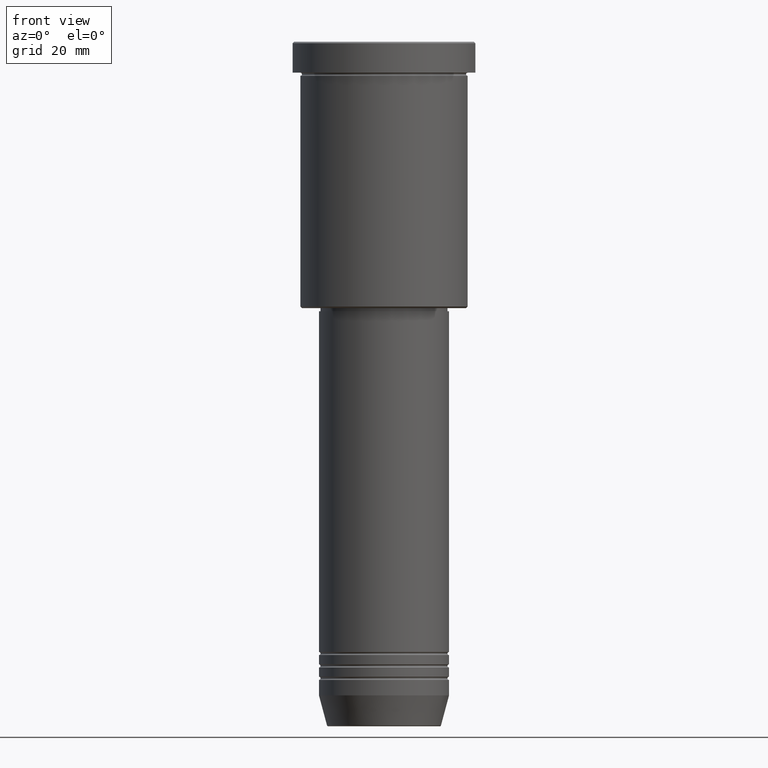
[diagram: clean part render]
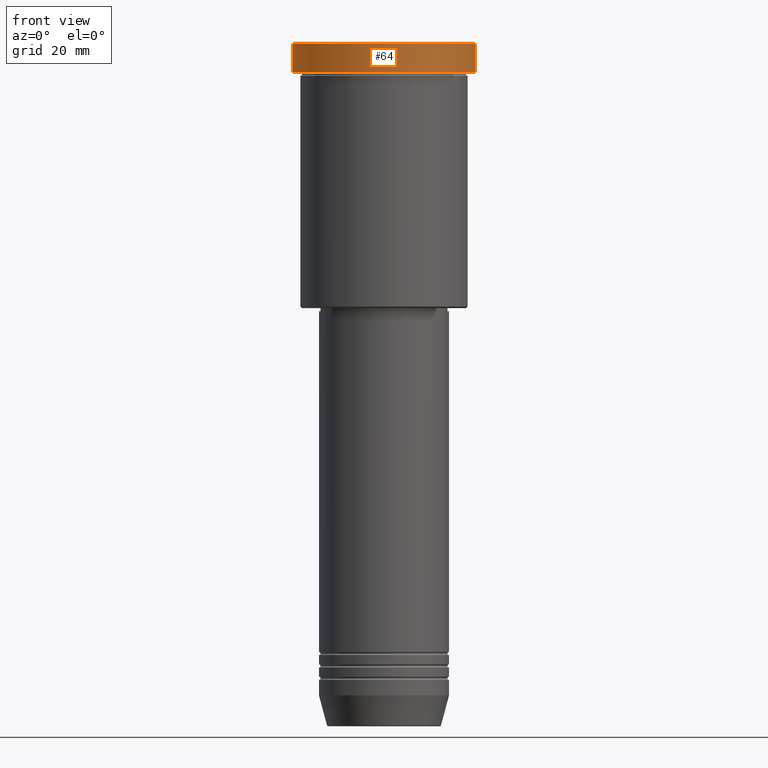
[diagram: same view with one face highlighted and labeled with its STEP entity id]
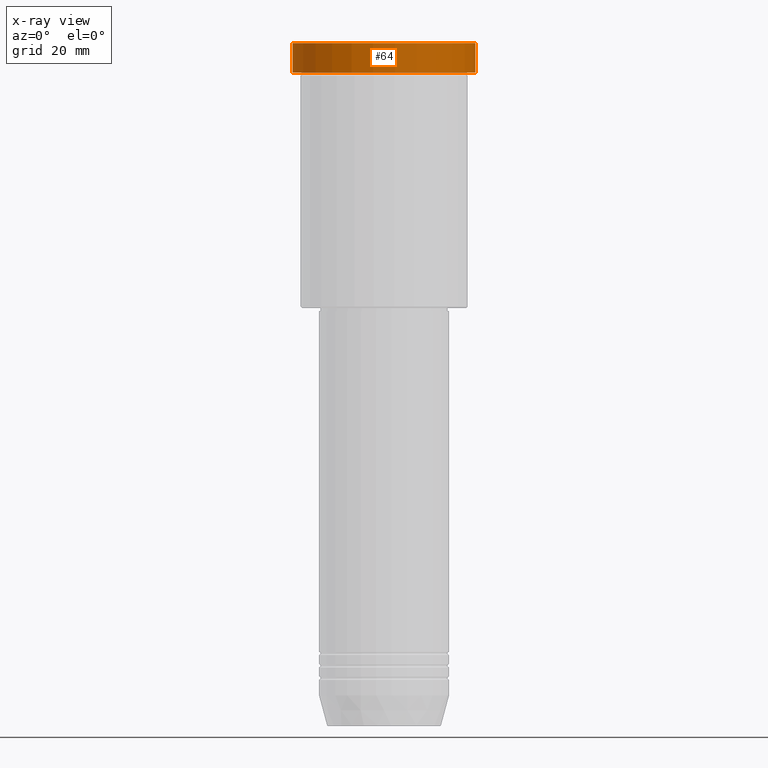
[diagram: x-ray of the same camera — body ghosted, the highlighted face saturated]
A machine part, front view. The second image highlights one B-rep face of the part: STEP entity #64.
The next image is the same camera in x-ray: the body ghosted, the highlighted face saturated — about 0% of this face is hidden behind the body in this view.
In plain terms, the highlighted cylindrical surface (partial cylindrical patch) has radius 29.5 mm, axis along (-0, -0, 1).
Its self-contained STEP definition (entity closure, byte-faithful):
#6 = AXIS2_PLACEMENT_3D ( 'NONE', #773, #687, #598 ) ;
#18 = CARTESIAN_POINT ( 'NONE',  ( -29.50000000000000000, 3.612708057484691604E-15, -9.999999999999992895 ) ) ;
#45 = VERTEX_POINT ( 'NONE', #18 ) ;
#54 = CARTESIAN_POINT ( 'NONE',  ( -29.50000000000000000, 3.612708057484691604E-15, -0.5000000000000559552 ) ) ;
#64 = ADVANCED_FACE ( 'NONE', ( #747 ), #1021, .T. ) ;
#131 = DIRECTION ( 'NONE',  ( -0.000000000000000000, -0.000000000000000000, 1.000000000000000000 ) ) ;
#139 = ORIENTED_EDGE ( 'NONE', *, *, #285, .T. ) ;
#189 = CARTESIAN_POINT ( 'NONE',  ( 29.50000000000000000, 0.000000000000000000, 0.000000000000000000 ) ) ;
#196 = EDGE_CURVE ( 'NONE', #420, #1084, #926, .T. ) ;
#267 = LINE ( 'NONE', #189, #986 ) ;
#275 = ORIENTED_EDGE ( 'NONE', *, *, #955, .T. ) ;
#285 = EDGE_CURVE ( 'NONE', #296, #420, #267, .T. ) ;
#296 = VERTEX_POINT ( 'NONE', #639 ) ;
#383 = DIRECTION ( 'NONE',  ( -0.000000000000000000, -0.000000000000000000, 1.000000000000000000 ) ) ;
#420 = VERTEX_POINT ( 'NONE', #596 ) ;
#432 = EDGE_LOOP ( 'NONE', ( #868, #275, #139, #1012 ) ) ;
#495 = DIRECTION ( 'NONE',  ( 1.000000000000000000, 0.000000000000000000, 0.000000000000000000 ) ) ;
#596 = CARTESIAN_POINT ( 'NONE',  ( 29.50000000000000000, 0.000000000000000000, -0.5000000000000559552 ) ) ;
#598 = DIRECTION ( 'NONE',  ( 1.000000000000000000, 0.000000000000000000, 0.000000000000000000 ) ) ;
#616 = DIRECTION ( 'NONE',  ( -0.000000000000000000, -0.000000000000000000, 1.000000000000000000 ) ) ;
#639 = CARTESIAN_POINT ( 'NONE',  ( 29.50000000000000000, 0.000000000000000000, -9.999999999999992895 ) ) ;
#687 = DIRECTION ( 'NONE',  ( 0.000000000000000000, 0.000000000000000000, -1.000000000000000000 ) ) ;
#690 = CARTESIAN_POINT ( 'NONE',  ( 0.000000000000000000, 0.000000000000000000, -9.999999999999992895 ) ) ;
#695 = LINE ( 'NONE', #890, #780 ) ;
#747 = FACE_OUTER_BOUND ( 'NONE', #432, .T. ) ;
#768 = DIRECTION ( 'NONE',  ( 1.000000000000000000, 0.000000000000000000, 0.000000000000000000 ) ) ;
#773 = CARTESIAN_POINT ( 'NONE',  ( 0.000000000000000000, 0.000000000000000000, -0.5000000000000559552 ) ) ;
#780 = VECTOR ( 'NONE', #616, 1000.000000000000000 ) ;
#815 = AXIS2_PLACEMENT_3D ( 'NONE', #690, #131, #495 ) ;
#836 = DIRECTION ( 'NONE',  ( -0.000000000000000000, -0.000000000000000000, 1.000000000000000000 ) ) ;
#868 = ORIENTED_EDGE ( 'NONE', *, *, #1039, .F. ) ;
#890 = CARTESIAN_POINT ( 'NONE',  ( -29.50000000000000000, 3.612708057484691604E-15, 0.000000000000000000 ) ) ;
#926 = CIRCLE ( 'NONE', #6, 29.50000000000000000 ) ;
#955 = EDGE_CURVE ( 'NONE', #45, #296, #989, .T. ) ;
#986 = VECTOR ( 'NONE', #836, 1000.000000000000000 ) ;
#989 = CIRCLE ( 'NONE', #815, 29.50000000000000000 ) ;
#1012 = ORIENTED_EDGE ( 'NONE', *, *, #196, .T. ) ;
#1021 = CYLINDRICAL_SURFACE ( 'NONE', #1098, 29.50000000000000000 ) ;
#1028 = CARTESIAN_POINT ( 'NONE',  ( 0.000000000000000000, 0.000000000000000000, 0.000000000000000000 ) ) ;
#1039 = EDGE_CURVE ( 'NONE', #45, #1084, #695, .T. ) ;
#1084 = VERTEX_POINT ( 'NONE', #54 ) ;
#1098 = AXIS2_PLACEMENT_3D ( 'NONE', #1028, #383, #768 ) ;